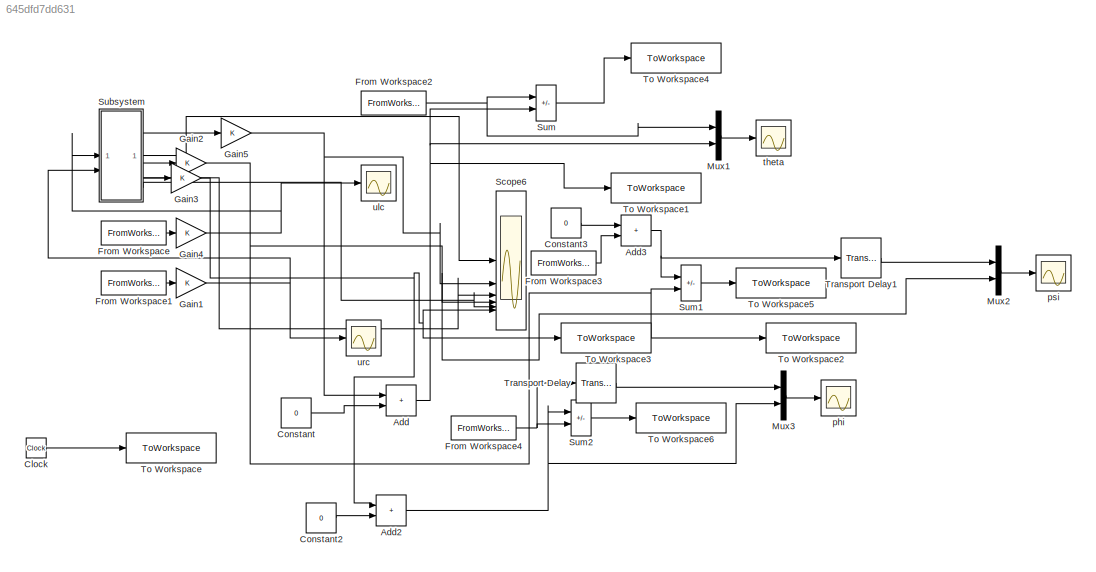
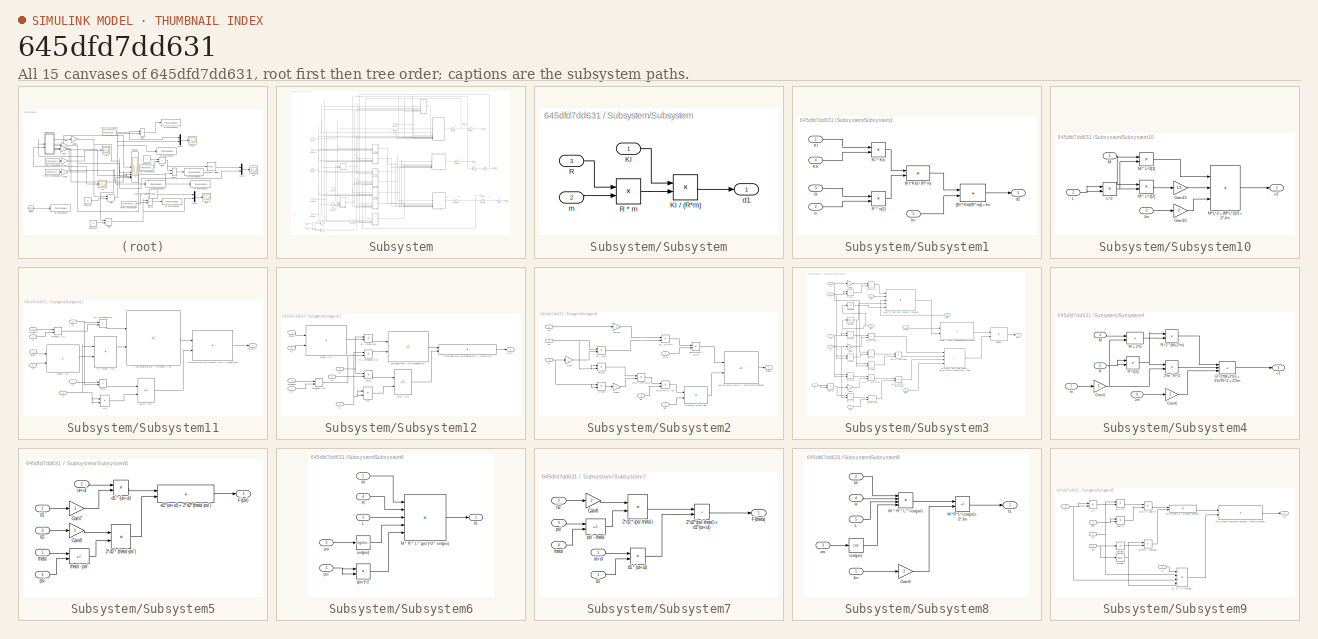
[diagram: thumbnail index - all 15 canvases of the model, root first then tree order]
MODEL slx_645dfd7dd631
KIND model
CONFIG AbsTol = auto
CONFIG EnableMultiTasking = off
CONFIG FixedStep = auto
CONFIG MaxStep = auto
CONFIG MinStep = auto
CONFIG RelTol = 1e-3
CONFIG SampleTimeConstraint = Unconstrained
CONFIG SolverName = VariableStepAuto
CONFIG StartTime = 0.0
CONFIG StopTime = 60
BLOCK [Sum] Add
  IconShape = rectangular
BLOCK [Sum] Add2
  IconShape = rectangular
BLOCK [Sum] Add3
  IconShape = rectangular
BLOCK [Clock] Clock
BLOCK [Constant] Constant
  Value = 0
BLOCK [Constant] Constant2
  Value = 0
BLOCK [Constant] Constant3
  Value = 0
BLOCK [FromWorkspace] From Workspace
  SampleTime = Ts
  VariableName = [t_exp urc]
BLOCK [FromWorkspace] From Workspace1
  SampleTime = Ts
  VariableName = [t_exp ulc]
BLOCK [FromWorkspace] From Workspace2
  SampleTime = Ts
  VariableName = [t_exp theta]
BLOCK [FromWorkspace] From Workspace3
  SampleTime = Ts
  VariableName = [t_exp psi]
BLOCK [FromWorkspace] From Workspace4
  SampleTime = Ts
  VariableName = [t_exp phi]
BLOCK [Gain] Gain1
BLOCK [Gain] Gain2
BLOCK [Gain] Gain3
BLOCK [Gain] Gain4
BLOCK [Gain] Gain5
BLOCK [Mux] Mux1
  DisplayOption = bar
  Inputs = 2
BLOCK [Mux] Mux2
  DisplayOption = bar
  Inputs = 2
BLOCK [Mux] Mux3
  DisplayOption = bar
  Inputs = 2
BLOCK [Scope] Scope6
  Floating = off
  NumInputPorts = 6
  ScopeSpecificationString = Simulink.scopes.TimeScopeBlockCfg('CurrentConfiguration', extmgr.ConfigurationSet(extmgr.Configuration('Core','General UI',true),extmgr.Configuration('Core','Source UI',true),extmgr.Configuration('Sources','WiredSimulink',true,'DataLoggingVariableName','ScopeData4'),extmgr.Configuration('Visuals','Time Domain',true,'SerializedDisplays',{struct('MinYLimReal','-14.69797','MaxYLimReal','20.64372','YL...<+1449ch>
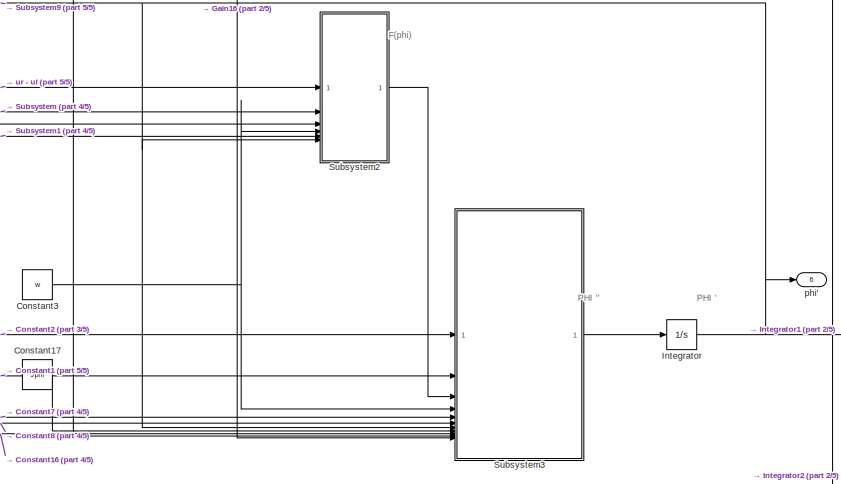
[diagram: Subsystem - part 1/5, top center region]
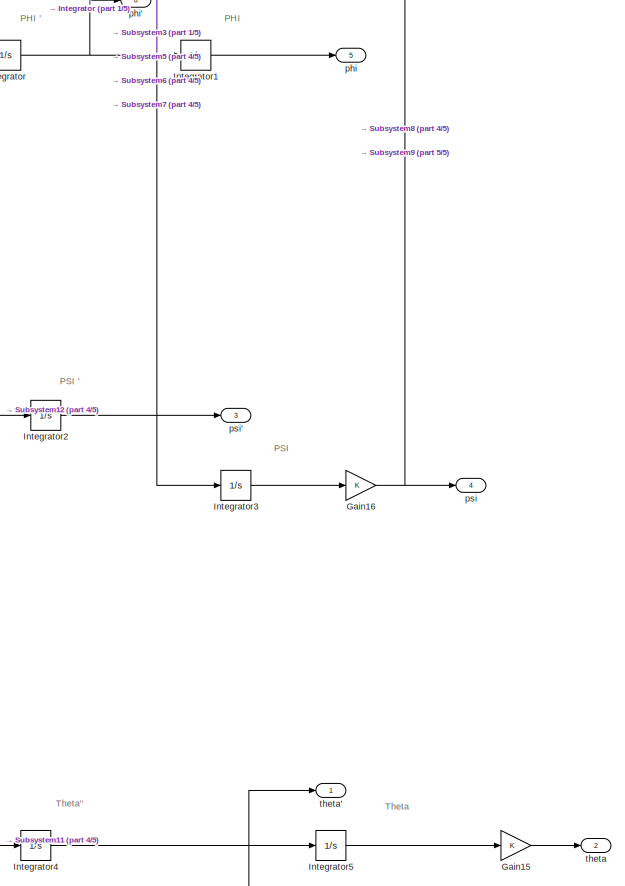
[diagram: Subsystem - part 2/5, middle right region]
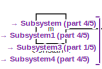
[diagram: Subsystem - part 3/5, middle left region]
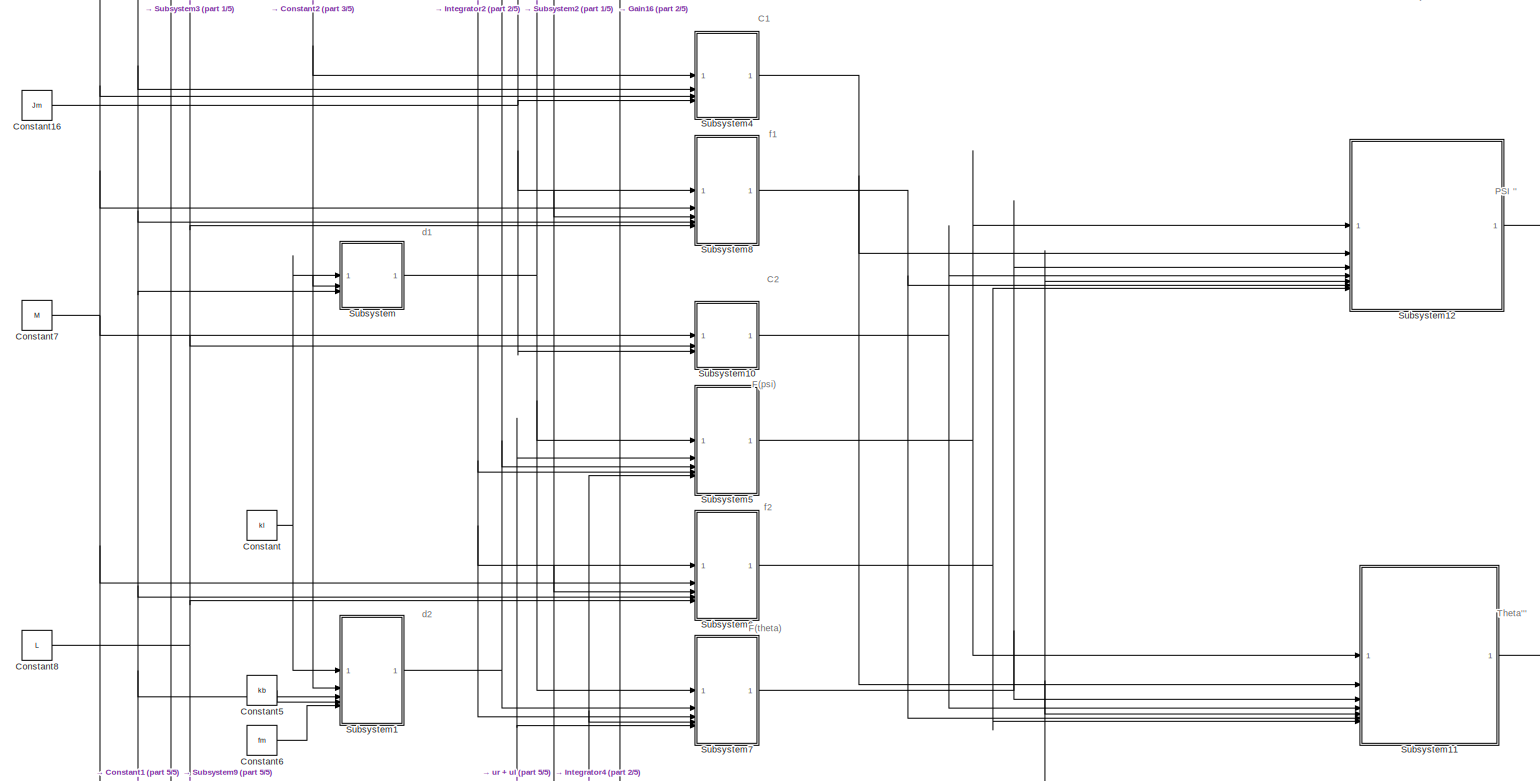
[diagram: Subsystem - part 4/5, central region]
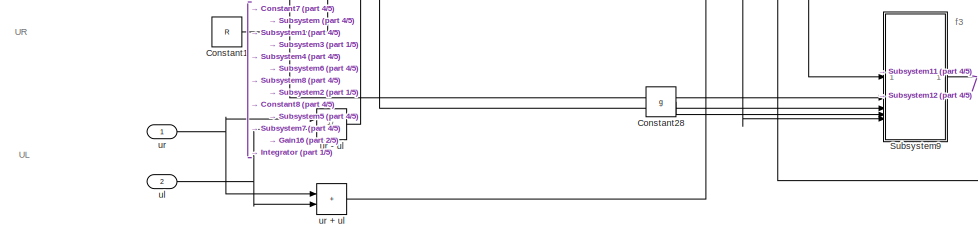
[diagram: Subsystem - part 5/5, bottom left region]
BLOCK [SubSystem] Subsystem
BLOCK [Constant] Subsystem/Constant
  Value = kl
BLOCK [Constant] Subsystem/Constant1
  Value = R
BLOCK [Constant] Subsystem/Constant16
  Value = Jm
BLOCK [Constant] Subsystem/Constant17
  Value = Jphi
BLOCK [Constant] Subsystem/Constant2
  Value = m
BLOCK [Constant] Subsystem/Constant28
  Value = g
BLOCK [Constant] Subsystem/Constant3
  Value = w
BLOCK [Constant] Subsystem/Constant5
  Value = kb
BLOCK [Constant] Subsystem/Constant6
  Value = fm
BLOCK [Constant] Subsystem/Constant7
  Value = M
BLOCK [Constant] Subsystem/Constant8
  Value = L
BLOCK [Gain] Subsystem/Gain15
BLOCK [Gain] Subsystem/Gain16
BLOCK [Integrator] Subsystem/Integrator
BLOCK [Integrator] Subsystem/Integrator1
BLOCK [Integrator] Subsystem/Integrator2
BLOCK [Integrator] Subsystem/Integrator3
BLOCK [Integrator] Subsystem/Integrator4
BLOCK [Integrator] Subsystem/Integrator5
BLOCK [SubSystem] Subsystem/Subsystem
BLOCK [Inport] Subsystem/Subsystem/Kl
BLOCK [Product] Subsystem/Subsystem/Kl // (R*m)
  Inputs = */
BLOCK [Inport] Subsystem/Subsystem/R
  Port = 3
BLOCK [Product] Subsystem/Subsystem/R * m
BLOCK [Outport] Subsystem/Subsystem/d1
BLOCK [Inport] Subsystem/Subsystem/m
  Port = 2
BLOCK [SubSystem] Subsystem/Subsystem1
BLOCK [Sum] Subsystem/Subsystem1/((Kl*Kb)//(R*m)) + fm
  IconShape = rectangular
BLOCK [Product] Subsystem/Subsystem1/(Kl*Kb) // (R*m)
  Inputs = */
BLOCK [Inport] Subsystem/Subsystem1/Kb
  Port = 4
BLOCK [Inport] Subsystem/Subsystem1/Kl
BLOCK [Product] Subsystem/Subsystem1/Kl * Kb
BLOCK [Inport] Subsystem/Subsystem1/R
  Port = 3
BLOCK [Product] Subsystem/Subsystem1/R * m[1]
BLOCK [Outport] Subsystem/Subsystem1/d2
BLOCK [Inport] Subsystem/Subsystem1/fm
  Port = 5
BLOCK [Inport] Subsystem/Subsystem1/m
  Port = 2
BLOCK [SubSystem] Subsystem/Subsystem10
BLOCK [Gain] Subsystem/Subsystem10/Gain10
  Gain = 2
BLOCK [Gain] Subsystem/Subsystem10/Gain13
  Gain = 1/3
BLOCK [Inport] Subsystem/Subsystem10/Jm
  Port = 3
BLOCK [Inport] Subsystem/Subsystem10/L
  Port = 2
BLOCK [Product] Subsystem/Subsystem10/L^2
BLOCK [Inport] Subsystem/Subsystem10/M
BLOCK [Product] Subsystem/Subsystem10/M * L^2[1]
BLOCK [Product] Subsystem/Subsystem10/M * L^2[2]
BLOCK [Sum] Subsystem/Subsystem10/M*L^2 + (M*L^2)//3 + 2*Jm
  IconShape = rectangular
  Inputs = +++
BLOCK [Outport] Subsystem/Subsystem10/c2
BLOCK [SubSystem] Subsystem/Subsystem11
BLOCK [Sum] Subsystem/Subsystem11/  c1*c2 - f1^2
  IconShape = rectangular
  Inputs = +-
BLOCK [Product] Subsystem/Subsystem11/(c2*(F(the ta)+f2)-f1*(F(psi) + f3)) // (c1*c2-f1^2) 
  Inputs = */
BLOCK [Inport] Subsystem/Subsystem11/F(psi)
BLOCK [Sum] Subsystem/Subsystem11/F(psi) + f3
  IconShape = rectangular
BLOCK [Inport] Subsystem/Subsystem11/F(theta)
  Port = 3
BLOCK [Sum] Subsystem/Subsystem11/F(theta) + f2
  IconShape = rectangular
BLOCK [Outport] Subsystem/Subsystem11/THETA"
BLOCK [Inport] Subsystem/Subsystem11/c1
  Port = 2
BLOCK [Product] Subsystem/Subsystem11/c1*c2
BLOCK [Inport] Subsystem/Subsystem11/c2
  Port = 4
BLOCK [Product] Subsystem/Subsystem11/c2 * (F(theta)+f2)
BLOCK [Sum] Subsystem/Subsystem11/c2*(F(the ta)+f2) - f1*(F(psi) + f3)
  IconShape = rectangular
  Inputs = +-
BLOCK [Inport] Subsystem/Subsystem11/f1
  Port = 6
BLOCK [Product] Subsystem/Subsystem11/f1 * (F(psi) + f3)
BLOCK [Product] Subsystem/Subsystem11/f1^2
BLOCK [Inport] Subsystem/Subsystem11/f2
  Port = 7
BLOCK [Inport] Subsystem/Subsystem11/f3
  Port = 5
BLOCK [SubSystem] Subsystem/Subsystem12
BLOCK [Sum] Subsystem/Subsystem12/ c1*c2 - f1^2
  IconShape = rectangular
  Inputs = +-
BLOCK [Product] Subsystem/Subsystem12/(c1*(F(psi)+f3)-f1*(F(theta)+f2)) // (c1*c2-f1^2)
  Inputs = */
BLOCK [Inport] Subsystem/Subsystem12/F(psi)
BLOCK [Sum] Subsystem/Subsystem12/F(psi) + f3
  IconShape = rectangular
BLOCK [Inport] Subsystem/Subsystem12/F(theta)
  Port = 3
BLOCK [Sum] Subsystem/Subsystem12/F(theta) + f2
  IconShape = rectangular
BLOCK [Outport] Subsystem/Subsystem12/PSI"
BLOCK [Inport] Subsystem/Subsystem12/c1
  Port = 2
BLOCK [Product] Subsystem/Subsystem12/c1 * (F(psi)+f3)
BLOCK [Sum] Subsystem/Subsystem12/c1*(F(psi)+f3) - f1* (F(theta)+f2 )
  IconShape = rectangular
  Inputs = +-
BLOCK [Product] Subsystem/Subsystem12/c1*c2
BLOCK [Inport] Subsystem/Subsystem12/c2
  Port = 4
BLOCK [Inport] Subsystem/Subsystem12/f1
  Port = 6
BLOCK [Product] Subsystem/Subsystem12/f1 * (F(theta)+ f2)
BLOCK [Product] Subsystem/Subsystem12/f1^2
BLOCK [Inport] Subsystem/Subsystem12/f2
  Port = 7
BLOCK [Inport] Subsystem/Subsystem12/f3
  Port = 5
BLOCK [SubSystem] Subsystem/Subsystem2
BLOCK [Product] Subsystem/Subsystem2/-d1 * W//(2*R)
BLOCK [Sum] Subsystem/Subsystem2/-d1*(W//(2*R))*(ur-ul) - W^2//(2*R^2)*d2*phi'
  IconShape = rectangular
  Inputs = +-
BLOCK [Product] Subsystem/Subsystem2/-d1*W//(2*R) * (ur-ul)
BLOCK [Outport] Subsystem/Subsystem2/F(phi)
BLOCK [Gain] Subsystem/Subsystem2/Gain
  Gain = 2
BLOCK [Gain] Subsystem/Subsystem2/Gain1
  Gain = 2
BLOCK [Gain] Subsystem/Subsystem2/Gain17
  Gain = -1
BLOCK [Inport] Subsystem/Subsystem2/R
  Port = 3
BLOCK [Product] Subsystem/Subsystem2/R^2[1]
BLOCK [Inport] Subsystem/Subsystem2/W
  Port = 4
BLOCK [Product] Subsystem/Subsystem2/W // (2*R)
  Inputs = */
BLOCK [Product] Subsystem/Subsystem2/W^2 // (2*R^2)[1]
  Inputs = */
BLOCK [Product] Subsystem/Subsystem2/W^2//(2*R^2) * d2
BLOCK [Product] Subsystem/Subsystem2/W^2//(2*R^2)*d2 * phi'
BLOCK [Product] Subsystem/Subsystem2/W^2[1]
BLOCK [Inport] Subsystem/Subsystem2/d1
  Port = 2
BLOCK [Inport] Subsystem/Subsystem2/d2
  Port = 5
BLOCK [Inport] Subsystem/Subsystem2/phi'
  Port = 6
BLOCK [Inport] Subsystem/Subsystem2/ur-ul
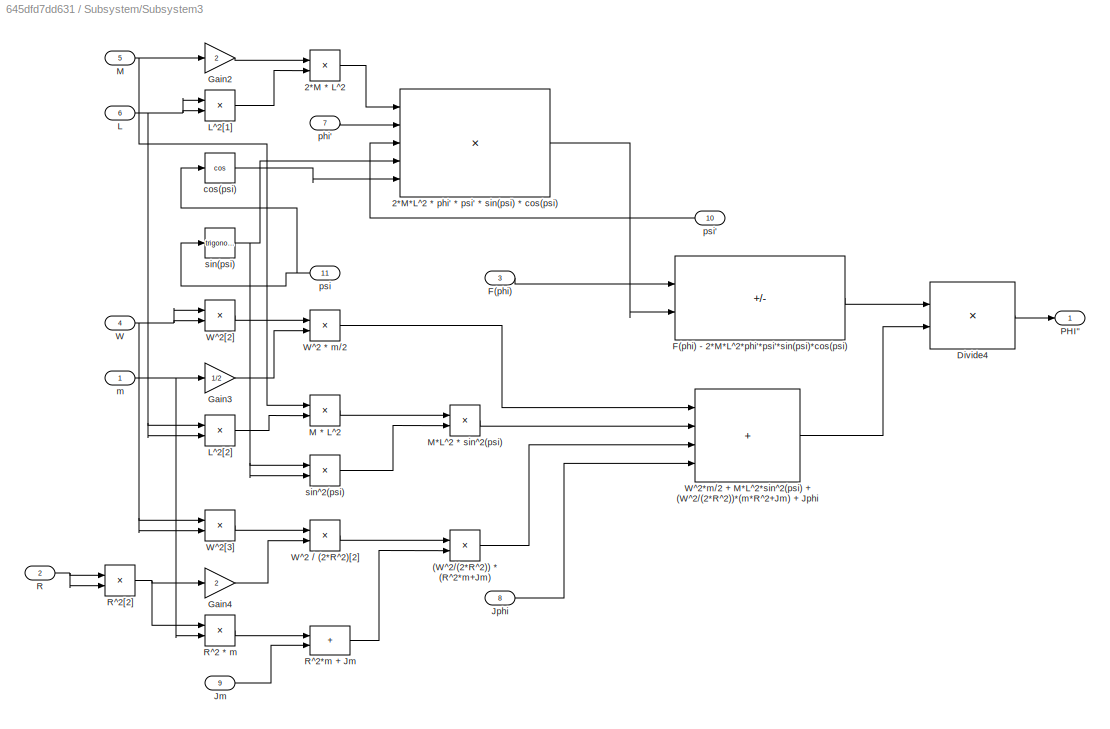
BLOCK [SubSystem] Subsystem/Subsystem3
BLOCK [Product] Subsystem/Subsystem3/(W^2//(2*R^2)) * (R^2*m+Jm)
BLOCK [Product] Subsystem/Subsystem3/2*M * L^2
BLOCK [Product] Subsystem/Subsystem3/2*M*L^2 * phi' * psi' * sin(psi) * cos(psi)
  Inputs = 5
BLOCK [Product] Subsystem/Subsystem3/Divide4
  Inputs = */
BLOCK [Inport] Subsystem/Subsystem3/F(phi)
  Port = 3
BLOCK [Sum] Subsystem/Subsystem3/F(phi) - 2*M*L^2*phi'*psi'*sin(psi)*cos(psi)
  IconShape = rectangular
  Inputs = +-
BLOCK [Gain] Subsystem/Subsystem3/Gain2
  Gain = 2
BLOCK [Gain] Subsystem/Subsystem3/Gain3
  Gain = 1/2
BLOCK [Gain] Subsystem/Subsystem3/Gain4
  Gain = 2
BLOCK [Inport] Subsystem/Subsystem3/Jm
  Port = 9
BLOCK [Inport] Subsystem/Subsystem3/Jphi 
  Port = 8
BLOCK [Inport] Subsystem/Subsystem3/L
  Port = 6
BLOCK [Product] Subsystem/Subsystem3/L^2[1]
BLOCK [Product] Subsystem/Subsystem3/L^2[2]
BLOCK [Inport] Subsystem/Subsystem3/M
  Port = 5
BLOCK [Product] Subsystem/Subsystem3/M * L^2
BLOCK [Product] Subsystem/Subsystem3/M*L^2 * sin^2(psi)
BLOCK [Outport] Subsystem/Subsystem3/PHI"
BLOCK [Inport] Subsystem/Subsystem3/R
  Port = 2
BLOCK [Product] Subsystem/Subsystem3/R^2 * m
BLOCK [Sum] Subsystem/Subsystem3/R^2*m + Jm
  IconShape = rectangular
BLOCK [Product] Subsystem/Subsystem3/R^2[2]
BLOCK [Inport] Subsystem/Subsystem3/W
  Port = 4
BLOCK [Product] Subsystem/Subsystem3/W^2 * m//2
BLOCK [Product] Subsystem/Subsystem3/W^2 // (2*R^2)[2]
  Inputs = */
BLOCK [Sum] Subsystem/Subsystem3/W^2*m//2 + M*L^2*sin^2(psi) + (W^2//(2*R^2))*(m*R^2+Jm) + Jphi
  IconShape = rectangular
  Inputs = ++++
BLOCK [Product] Subsystem/Subsystem3/W^2[2]
BLOCK [Product] Subsystem/Subsystem3/W^2[3]
BLOCK [Trigonometry] Subsystem/Subsystem3/cos(psi)
  Operator = cos
BLOCK [Inport] Subsystem/Subsystem3/m
BLOCK [Inport] Subsystem/Subsystem3/phi'
  Port = 7
BLOCK [Inport] Subsystem/Subsystem3/psi
  Port = 11
BLOCK [Inport] Subsystem/Subsystem3/psi'
  Port = 10
BLOCK [Trigonometry] Subsystem/Subsystem3/sin(psi)
BLOCK [Product] Subsystem/Subsystem3/sin^2(psi)
BLOCK [SubSystem] Subsystem/Subsystem4
BLOCK [Product] Subsystem/Subsystem4/2*m * R^2
BLOCK [Gain] Subsystem/Subsystem4/Gain5
  Gain = 2
BLOCK [Gain] Subsystem/Subsystem4/Gain6
  Gain = 2
BLOCK [Inport] Subsystem/Subsystem4/Jm
  Port = 4
BLOCK [Inport] Subsystem/Subsystem4/M
  Port = 3
BLOCK [Sum] Subsystem/Subsystem4/M + 2*m
  IconShape = rectangular
BLOCK [Inport] Subsystem/Subsystem4/R
  Port = 2
BLOCK [Product] Subsystem/Subsystem4/R^2 * (M+2*m)
BLOCK [Sum] Subsystem/Subsystem4/R^2*(M+2*m) + 2*m*R^2 + 2*Jm
  IconShape = rectangular
  Inputs = +++
BLOCK [Product] Subsystem/Subsystem4/R^2[3]
BLOCK [Outport] Subsystem/Subsystem4/c1
BLOCK [Inport] Subsystem/Subsystem4/m
BLOCK [SubSystem] Subsystem/Subsystem5
BLOCK [Product] Subsystem/Subsystem5/-d1 * (ur+ul)
BLOCK [Sum] Subsystem/Subsystem5/-d1*(ur+ul) + 2*d2*(theta'-psi')
  IconShape = rectangular
BLOCK [Product] Subsystem/Subsystem5/2*d2 * (theta'-psi')
BLOCK [Outport] Subsystem/Subsystem5/F(psi)
BLOCK [Gain] Subsystem/Subsystem5/Gain7
  Gain = -1
BLOCK [Gain] Subsystem/Subsystem5/Gain8
  Gain = 2
BLOCK [Inport] Subsystem/Subsystem5/d1
BLOCK [Inport] Subsystem/Subsystem5/d2
  Port = 3
BLOCK [Inport] Subsystem/Subsystem5/psi'
  Port = 4
BLOCK [Inport] Subsystem/Subsystem5/theta'
  Port = 5
BLOCK [Sum] Subsystem/Subsystem5/theta' - psi'
  IconShape = rectangular
  Inputs = +-
BLOCK [Inport] Subsystem/Subsystem5/ur+ul
  Port = 2
BLOCK [SubSystem] Subsystem/Subsystem6
BLOCK [Product] Subsystem/Subsystem6/(psi')^2
BLOCK [Inport] Subsystem/Subsystem6/L
  Port = 5
BLOCK [Inport] Subsystem/Subsystem6/M
  Port = 2
BLOCK [Product] Subsystem/Subsystem6/M * R * L * (psi')^2 * sin(psi)
  Inputs = 5
BLOCK [Inport] Subsystem/Subsystem6/R
  Port = 4
BLOCK [Outport] Subsystem/Subsystem6/f2
BLOCK [Inport] Subsystem/Subsystem6/psi
  Port = 3
BLOCK [Inport] Subsystem/Subsystem6/psi'
BLOCK [Trigonometry] Subsystem/Subsystem6/sin(psi)
BLOCK [SubSystem] Subsystem/Subsystem7
BLOCK [Product] Subsystem/Subsystem7/2*d2 * (psi'-theta')
BLOCK [Sum] Subsystem/Subsystem7/2*d2*(psi'-theta') + d1*(ur+ul) 
  IconShape = rectangular
BLOCK [Outport] Subsystem/Subsystem7/F(theta)
BLOCK [Gain] Subsystem/Subsystem7/Gain8
  Gain = 2
BLOCK [Inport] Subsystem/Subsystem7/d1
BLOCK [Product] Subsystem/Subsystem7/d1  * (ur+ul) 
BLOCK [Inport] Subsystem/Subsystem7/d2
  Port = 2
BLOCK [Inport] Subsystem/Subsystem7/psi'
  Port = 3
BLOCK [Sum] Subsystem/Subsystem7/psi' - theta'
  IconShape = rectangular
  Inputs = +-
BLOCK [Inport] Subsystem/Subsystem7/theta'
  Port = 4
BLOCK [Inport] Subsystem/Subsystem7/ur+ul
  Port = 5
BLOCK [SubSystem] Subsystem/Subsystem8
BLOCK [Gain] Subsystem/Subsystem8/Gain9
  Gain = 2
BLOCK [Inport] Subsystem/Subsystem8/Jm
BLOCK [Inport] Subsystem/Subsystem8/L
  Port = 5
BLOCK [Inport] Subsystem/Subsystem8/M
  Port = 2
BLOCK [Product] Subsystem/Subsystem8/M * R * L * cos(psi) 
  Inputs = 4
BLOCK [Sum] Subsystem/Subsystem8/M*R*L*cos(psi) - 2*Jm 
  IconShape = rectangular
  Inputs = +-
BLOCK [Inport] Subsystem/Subsystem8/R 
  Port = 4
BLOCK [Trigonometry] Subsystem/Subsystem8/cos(psi)
  Operator = cos
BLOCK [Outport] Subsystem/Subsystem8/f1
BLOCK [Inport] Subsystem/Subsystem8/psi
  Port = 3
BLOCK [SubSystem] Subsystem/Subsystem9
BLOCK [Product] Subsystem/Subsystem9/(phi')^2
BLOCK [Inport] Subsystem/Subsystem9/L 
  Port = 3
BLOCK [Product] Subsystem/Subsystem9/L^2
BLOCK [Inport] Subsystem/Subsystem9/M
  Port = 2
BLOCK [Product] Subsystem/Subsystem9/M * L^2
BLOCK [Product] Subsystem/Subsystem9/M*L^2 * (phi')^2
BLOCK [Product] Subsystem/Subsystem9/M*L^2*(phi')^2 * sin(psi)*cos(psi)
BLOCK [Sum] Subsystem/Subsystem9/M*L^2*(phi')^2*sin(psi)*cos(psi) + g*M*L*sin(psi)
  IconShape = rectangular
BLOCK [Trigonometry] Subsystem/Subsystem9/cos(psi)
  Operator = cos
BLOCK [Outport] Subsystem/Subsystem9/f3
BLOCK [Inport] Subsystem/Subsystem9/g
  Port = 4
BLOCK [Product] Subsystem/Subsystem9/g * M * L * sin(psi)
  Inputs = 4
BLOCK [Inport] Subsystem/Subsystem9/phi'
BLOCK [Inport] Subsystem/Subsystem9/psi
  Port = 5
BLOCK [Trigonometry] Subsystem/Subsystem9/sin(psi)
BLOCK [Product] Subsystem/Subsystem9/sin(psi) * cos(psi)
BLOCK [Outport] Subsystem/phi
  Port = 5
  VectorParamsAs1DForOutWhenUnconnected = off
BLOCK [Outport] Subsystem/phi'
  Port = 6
  VectorParamsAs1DForOutWhenUnconnected = off
BLOCK [Outport] Subsystem/psi
  Port = 4
  VectorParamsAs1DForOutWhenUnconnected = off
BLOCK [Outport] Subsystem/psi'
  Port = 3
  VectorParamsAs1DForOutWhenUnconnected = off
BLOCK [Outport] Subsystem/theta
  Port = 2
  VectorParamsAs1DForOutWhenUnconnected = off
BLOCK [Outport] Subsystem/theta'
  VectorParamsAs1DForOutWhenUnconnected = off
BLOCK [Inport] Subsystem/ul
  Port = 2
BLOCK [Inport] Subsystem/ur
BLOCK [Sum] Subsystem/ur + ul 
  IconShape = rectangular
BLOCK [Sum] Subsystem/ur - ul
  IconShape = rectangular
  Inputs = +-
BLOCK [Sum] Sum
  IconShape = rectangular
  Inputs = |+-
BLOCK [Sum] Sum1
  IconShape = rectangular
  Inputs = |+-
BLOCK [Sum] Sum2
  IconShape = rectangular
  Inputs = -+
BLOCK [ToWorkspace] To Workspace
  FixptAsFi = on
  MaxDataPoints = inf
  SampleTime = Ts
  VariableName = t
BLOCK [ToWorkspace] To Workspace1
  FixptAsFi = on
  MaxDataPoints = inf
  SampleTime = Ts
  VariableName = theta_sim
BLOCK [ToWorkspace] To Workspace2
  FixptAsFi = on
  MaxDataPoints = inf
  SampleTime = Ts
  VariableName = psi_sim
BLOCK [ToWorkspace] To Workspace3
  FixptAsFi = on
  MaxDataPoints = inf
  SampleTime = Ts
  VariableName = phi_sim
BLOCK [ToWorkspace] To Workspace4
  FixptAsFi = on
  MaxDataPoints = inf
  SampleTime = Ts
  VariableName = e_theta_sim
BLOCK [ToWorkspace] To Workspace5
  FixptAsFi = on
  MaxDataPoints = inf
  SampleTime = Ts
  VariableName = e_psi_sim
BLOCK [ToWorkspace] To Workspace6
  FixptAsFi = on
  MaxDataPoints = inf
  SampleTime = Ts
  VariableName = e_phi_sim
BLOCK [TransportDelay] Transport Delay
  DelayTime = 2.6
BLOCK [TransportDelay] Transport Delay1
  DelayTime = 1.2
BLOCK [Scope] phi
  Floating = off
  NumInputPorts = 1
  ScopeSpecificationString = Simulink.scopes.TimeScopeBlockCfg('CurrentConfiguration', extmgr.ConfigurationSet(extmgr.Configuration('Core','General UI',true),extmgr.Configuration('Core','Source UI',true),extmgr.Configuration('Sources','WiredSimulink',true,'DataLoggingVariableName','ScopeData3','SampleTime','Ts'),extmgr.Configuration('Visuals','Time Domain',true,'SerializedDisplays',{struct('MinYLimReal','-0.01823','MaxYLimRea...<+1439ch>
BLOCK [Scope] psi
  Floating = off
  NumInputPorts = 1
  ScopeSpecificationString = Simulink.scopes.TimeScopeBlockCfg('CurrentConfiguration', extmgr.ConfigurationSet(extmgr.Configuration('Core','General UI',true),extmgr.Configuration('Core','Source UI',true),extmgr.Configuration('Sources','WiredSimulink',true,'DataLoggingVariableName','ScopeData2','SampleTime','Ts'),extmgr.Configuration('Visuals','Time Domain',true,'SerializedDisplays',{struct('MinYLimReal','-0.63752','MaxYLimRea...<+1448ch>
BLOCK [Scope] theta
  Floating = off
  NumInputPorts = 1
  ScopeSpecificationString = Simulink.scopes.TimeScopeBlockCfg('CurrentConfiguration', extmgr.ConfigurationSet(extmgr.Configuration('Core','General UI',true),extmgr.Configuration('Core','Source UI',true),extmgr.Configuration('Sources','WiredSimulink',true,'DataLoggingVariableName','ScopeData1','SampleTime','Ts'),extmgr.Configuration('Visuals','Time Domain',true,'SerializedDisplays',{struct('MinYLimReal','-2.68301','MaxYLimRea...<+1449ch>
BLOCK [Scope] ulc
  Floating = off
  NumInputPorts = 1
  ScopeSpecificationString = Simulink.scopes.TimeScopeBlockCfg('CurrentConfiguration', extmgr.ConfigurationSet(extmgr.Configuration('Core','General UI',true),extmgr.Configuration('Core','Source UI',true),extmgr.Configuration('Sources','WiredSimulink',true,'DataLoggingVariableName','ScopeData4','SampleTime','Ts'),extmgr.Configuration('Visuals','Time Domain',true,'SerializedDisplays',{struct('MinYLimReal','4.56074','MaxYLimReal...<+1458ch>
BLOCK [Scope] urc
  Floating = off
  NumInputPorts = 1
  ScopeSpecificationString = Simulink.scopes.TimeScopeBlockCfg('CurrentConfiguration', extmgr.ConfigurationSet(extmgr.Configuration('Core','General UI',true),extmgr.Configuration('Core','Source UI',true),extmgr.Configuration('Sources','WiredSimulink',true,'DataLoggingVariableName','ScopeData5','SampleTime','Ts'),extmgr.Configuration('Visuals','Time Domain',true,'SerializedDisplays',{struct('MinYLimReal','4.56074','MaxYLimReal...<+1475ch>
ANNOTATION Subsystem: PHI '
ANNOTATION Subsystem: PHI ' '
ANNOTATION Subsystem: PHI
ANNOTATION Subsystem: PSI ''
ANNOTATION Subsystem: PSI '
ANNOTATION Subsystem: PSI
ANNOTATION Subsystem: Theta'' '
ANNOTATION Subsystem: Theta' '
ANNOTATION Subsystem: Theta
ANNOTATION Subsystem: C1
ANNOTATION Subsystem: C2
ANNOTATION Subsystem: F(psi)
ANNOTATION Subsystem: UL
ANNOTATION Subsystem: UR
ANNOTATION Subsystem: d1
ANNOTATION Subsystem: d2
ANNOTATION Subsystem: f1
ANNOTATION Subsystem: F(phi)
ANNOTATION Subsystem: F(theta)
ANNOTATION Subsystem: f2
ANNOTATION Subsystem: f3
NET Add2:1 -> Mux3:2, Sum2:1
NET Add3:1 -> Sum1:1, Transport Delay1:1
NET Add:1 -> Mux1:2, Sum:2, To Workspace1:1
LINE Clock:1 -> To Workspace:1
LINE Constant2:1 -> Add2:2
LINE Constant3:1 -> Add3:1
LINE Constant:1 -> Add:2
LINE From Workspace1:1 -> Gain1:1
NET From Workspace2:1 -> Mux1:1, Sum:1
LINE From Workspace3:1 -> Add3:2
NET From Workspace4:1 -> Sum2:2, Transport Delay:1
LINE From Workspace:1 -> Gain4:1
NET Gain1:1 -> Subsystem:2, urc:1
NET Gain2:1 -> Mux2:2, Scope6:4, Sum1:2, To Workspace2:1
NET Gain3:1 -> Add2:1, Scope6:6, To Workspace3:1
NET Gain4:1 -> Subsystem:1, ulc:1
NET Gain5:1 -> Add:1, Scope6:2
LINE Mux1:1 -> theta:1
LINE Mux2:1 -> psi:1
LINE Mux3:1 -> phi:1
NET Subsystem/Constant16:1 -> Subsystem/Subsystem10:3, Subsystem/Subsystem3:9, Subsystem/Subsystem4:4, Subsystem/Subsystem8:1
LINE Subsystem/Constant17:1 -> Subsystem/Subsystem3:8
NET Subsystem/Constant1:1 -> Subsystem/Subsystem1:3, Subsystem/Subsystem2:3, Subsystem/Subsystem3:2, Subsystem/Subsystem4:2, Subsystem/Subsystem6:4, Subsystem/Subsystem8:4, Subsystem/Subsystem:3
LINE Subsystem/Constant28:1 -> Subsystem/Subsystem9:4
NET Subsystem/Constant2:1 -> Subsystem/Subsystem1:2, Subsystem/Subsystem3:1, Subsystem/Subsystem4:1, Subsystem/Subsystem:2
NET Subsystem/Constant3:1 -> Subsystem/Subsystem2:4, Subsystem/Subsystem3:4
LINE Subsystem/Constant5:1 -> Subsystem/Subsystem1:4
LINE Subsystem/Constant6:1 -> Subsystem/Subsystem1:5
NET Subsystem/Constant7:1 -> Subsystem/Subsystem10:1, Subsystem/Subsystem3:5, Subsystem/Subsystem4:3, Subsystem/Subsystem6:2, Subsystem/Subsystem8:2, Subsystem/Subsystem9:2
NET Subsystem/Constant8:1 -> Subsystem/Subsystem10:2, Subsystem/Subsystem3:6, Subsystem/Subsystem6:5, Subsystem/Subsystem8:5, Subsystem/Subsystem9:3
NET Subsystem/Constant:1 -> Subsystem/Subsystem1:1, Subsystem/Subsystem:1
LINE Subsystem/Gain15:1 -> Subsystem/theta:1
NET Subsystem/Gain16:1 -> Subsystem/Subsystem3:11, Subsystem/Subsystem6:3, Subsystem/Subsystem8:3, Subsystem/Subsystem9:5, Subsystem/psi:1
LINE Subsystem/Integrator1:1 -> Subsystem/phi:1
NET Subsystem/Integrator2:1 -> Subsystem/Integrator3:1, Subsystem/Subsystem3:10, Subsystem/Subsystem5:4, Subsystem/Subsystem6:1, Subsystem/Subsystem7:3, Subsystem/psi':1
LINE Subsystem/Integrator3:1 -> Subsystem/Gain16:1
NET Subsystem/Integrator4:1 -> Subsystem/Integrator5:1, Subsystem/Subsystem5:5, Subsystem/Subsystem7:4, Subsystem/theta':1
LINE Subsystem/Integrator5:1 -> Subsystem/Gain15:1
NET Subsystem/Integrator:1 -> Subsystem/Integrator1:1, Subsystem/Subsystem2:6, Subsystem/Subsystem3:7, Subsystem/Subsystem9:1, Subsystem/phi':1
LINE Subsystem/Subsystem/Kl // (R*m):1 -> Subsystem/Subsystem/d1:1
LINE Subsystem/Subsystem/Kl:1 -> Subsystem/Subsystem/Kl // (R*m):1
LINE Subsystem/Subsystem/R * m:1 -> Subsystem/Subsystem/Kl // (R*m):2
LINE Subsystem/Subsystem/R:1 -> Subsystem/Subsystem/R * m:1
LINE Subsystem/Subsystem/m:1 -> Subsystem/Subsystem/R * m:2
LINE Subsystem/Subsystem1/((Kl*Kb)//(R*m)) + fm:1 -> Subsystem/Subsystem1/d2:1
LINE Subsystem/Subsystem1/(Kl*Kb) // (R*m):1 -> Subsystem/Subsystem1/((Kl*Kb)//(R*m)) + fm:1
LINE Subsystem/Subsystem1/Kb:1 -> Subsystem/Subsystem1/Kl * Kb:2
LINE Subsystem/Subsystem1/Kl * Kb:1 -> Subsystem/Subsystem1/(Kl*Kb) // (R*m):1
LINE Subsystem/Subsystem1/Kl:1 -> Subsystem/Subsystem1/Kl * Kb:1
LINE Subsystem/Subsystem1/R * m[1]:1 -> Subsystem/Subsystem1/(Kl*Kb) // (R*m):2
LINE Subsystem/Subsystem1/R:1 -> Subsystem/Subsystem1/R * m[1]:1
LINE Subsystem/Subsystem1/fm:1 -> Subsystem/Subsystem1/((Kl*Kb)//(R*m)) + fm:2
LINE Subsystem/Subsystem1/m:1 -> Subsystem/Subsystem1/R * m[1]:2
LINE Subsystem/Subsystem10/Gain10:1 -> Subsystem/Subsystem10/M*L^2 + (M*L^2)//3 + 2*Jm:3
LINE Subsystem/Subsystem10/Gain13:1 -> Subsystem/Subsystem10/M*L^2 + (M*L^2)//3 + 2*Jm:2
LINE Subsystem/Subsystem10/Jm:1 -> Subsystem/Subsystem10/Gain10:1
NET Subsystem/Subsystem10/L:1 -> Subsystem/Subsystem10/L^2:1, Subsystem/Subsystem10/L^2:2
NET Subsystem/Subsystem10/L^2:1 -> Subsystem/Subsystem10/M * L^2[1]:2, Subsystem/Subsystem10/M * L^2[2]:2
LINE Subsystem/Subsystem10/M * L^2[1]:1 -> Subsystem/Subsystem10/M*L^2 + (M*L^2)//3 + 2*Jm:1
LINE Subsystem/Subsystem10/M * L^2[2]:1 -> Subsystem/Subsystem10/Gain13:1
LINE Subsystem/Subsystem10/M*L^2 + (M*L^2)//3 + 2*Jm:1 -> Subsystem/Subsystem10/c2:1
NET Subsystem/Subsystem10/M:1 -> Subsystem/Subsystem10/M * L^2[1]:1, Subsystem/Subsystem10/M * L^2[2]:1
NET Subsystem/Subsystem10:1 -> Subsystem/Subsystem11:4, Subsystem/Subsystem12:4
LINE Subsystem/Subsystem11/  c1*c2 - f1^2:1 -> Subsystem/Subsystem11/(c2*(F(the ta)+f2)-f1*(F(psi) + f3)) // (c1*c2-f1^2) :2
LINE Subsystem/Subsystem11/(c2*(F(the ta)+f2)-f1*(F(psi) + f3)) // (c1*c2-f1^2) :1 -> Subsystem/Subsystem11/THETA":1
LINE Subsystem/Subsystem11/F(psi) + f3:1 -> Subsystem/Subsystem11/f1 * (F(psi) + f3):2
LINE Subsystem/Subsystem11/F(psi):1 -> Subsystem/Subsystem11/F(psi) + f3:1
LINE Subsystem/Subsystem11/F(theta) + f2:1 -> Subsystem/Subsystem11/c2 * (F(theta)+f2):2
LINE Subsystem/Subsystem11/F(theta):1 -> Subsystem/Subsystem11/F(theta) + f2:1
LINE Subsystem/Subsystem11/c1*c2:1 -> Subsystem/Subsystem11/  c1*c2 - f1^2:1
LINE Subsystem/Subsystem11/c1:1 -> Subsystem/Subsystem11/c1*c2:1
LINE Subsystem/Subsystem11/c2 * (F(theta)+f2):1 -> Subsystem/Subsystem11/c2*(F(the ta)+f2) - f1*(F(psi) + f3):1
LINE Subsystem/Subsystem11/c2*(F(the ta)+f2) - f1*(F(psi) + f3):1 -> Subsystem/Subsystem11/(c2*(F(the ta)+f2)-f1*(F(psi) + f3)) // (c1*c2-f1^2) :1
NET Subsystem/Subsystem11/c2:1 -> Subsystem/Subsystem11/c1*c2:2, Subsystem/Subsystem11/c2 * (F(theta)+f2):1
LINE Subsystem/Subsystem11/f1 * (F(psi) + f3):1 -> Subsystem/Subsystem11/c2*(F(the ta)+f2) - f1*(F(psi) + f3):2
NET Subsystem/Subsystem11/f1:1 -> Subsystem/Subsystem11/f1 * (F(psi) + f3):1, Subsystem/Subsystem11/f1^2:1, Subsystem/Subsystem11/f1^2:2
LINE Subsystem/Subsystem11/f1^2:1 -> Subsystem/Subsystem11/  c1*c2 - f1^2:2
LINE Subsystem/Subsystem11/f2:1 -> Subsystem/Subsystem11/F(theta) + f2:2
LINE Subsystem/Subsystem11/f3:1 -> Subsystem/Subsystem11/F(psi) + f3:2
LINE Subsystem/Subsystem11:1 -> Subsystem/Integrator4:1
LINE Subsystem/Subsystem12/ c1*c2 - f1^2:1 -> Subsystem/Subsystem12/(c1*(F(psi)+f3)-f1*(F(theta)+f2)) // (c1*c2-f1^2):2
LINE Subsystem/Subsystem12/(c1*(F(psi)+f3)-f1*(F(theta)+f2)) // (c1*c2-f1^2):1 -> Subsystem/Subsystem12/PSI":1
LINE Subsystem/Subsystem12/F(psi) + f3:1 -> Subsystem/Subsystem12/c1 * (F(psi)+f3):2
LINE Subsystem/Subsystem12/F(psi):1 -> Subsystem/Subsystem12/F(psi) + f3:1
LINE Subsystem/Subsystem12/F(theta) + f2:1 -> Subsystem/Subsystem12/f1 * (F(theta)+ f2):2
LINE Subsystem/Subsystem12/F(theta):1 -> Subsystem/Subsystem12/F(theta) + f2:1
LINE Subsystem/Subsystem12/c1 * (F(psi)+f3):1 -> Subsystem/Subsystem12/c1*(F(psi)+f3) - f1* (F(theta)+f2 ):1
LINE Subsystem/Subsystem12/c1*(F(psi)+f3) - f1* (F(theta)+f2 ):1 -> Subsystem/Subsystem12/(c1*(F(psi)+f3)-f1*(F(theta)+f2)) // (c1*c2-f1^2):1
LINE Subsystem/Subsystem12/c1*c2:1 -> Subsystem/Subsystem12/ c1*c2 - f1^2:1
NET Subsystem/Subsystem12/c1:1 -> Subsystem/Subsystem12/c1 * (F(psi)+f3):1, Subsystem/Subsystem12/c1*c2:1
LINE Subsystem/Subsystem12/c2:1 -> Subsystem/Subsystem12/c1*c2:2
LINE Subsystem/Subsystem12/f1 * (F(theta)+ f2):1 -> Subsystem/Subsystem12/c1*(F(psi)+f3) - f1* (F(theta)+f2 ):2
NET Subsystem/Subsystem12/f1:1 -> Subsystem/Subsystem12/f1 * (F(theta)+ f2):1, Subsystem/Subsystem12/f1^2:1, Subsystem/Subsystem12/f1^2:2
LINE Subsystem/Subsystem12/f1^2:1 -> Subsystem/Subsystem12/ c1*c2 - f1^2:2
LINE Subsystem/Subsystem12/f2:1 -> Subsystem/Subsystem12/F(theta) + f2:2
LINE Subsystem/Subsystem12/f3:1 -> Subsystem/Subsystem12/F(psi) + f3:2
LINE Subsystem/Subsystem12:1 -> Subsystem/Integrator2:1
NET Subsystem/Subsystem1:1 -> Subsystem/Subsystem2:5, Subsystem/Subsystem5:3, Subsystem/Subsystem7:2
LINE Subsystem/Subsystem2/-d1 * W//(2*R):1 -> Subsystem/Subsystem2/-d1*W//(2*R) * (ur-ul):1
LINE Subsystem/Subsystem2/-d1*(W//(2*R))*(ur-ul) - W^2//(2*R^2)*d2*phi':1 -> Subsystem/Subsystem2/F(phi):1
LINE Subsystem/Subsystem2/-d1*W//(2*R) * (ur-ul):1 -> Subsystem/Subsystem2/-d1*(W//(2*R))*(ur-ul) - W^2//(2*R^2)*d2*phi':1
LINE Subsystem/Subsystem2/Gain17:1 -> Subsystem/Subsystem2/-d1 * W//(2*R):1
LINE Subsystem/Subsystem2/Gain1:1 -> Subsystem/Subsystem2/W^2 // (2*R^2)[1]:2
LINE Subsystem/Subsystem2/Gain:1 -> Subsystem/Subsystem2/W // (2*R):2
NET Subsystem/Subsystem2/R:1 -> Subsystem/Subsystem2/Gain:1, Subsystem/Subsystem2/R^2[1]:1, Subsystem/Subsystem2/R^2[1]:2
LINE Subsystem/Subsystem2/R^2[1]:1 -> Subsystem/Subsystem2/Gain1:1
LINE Subsystem/Subsystem2/W // (2*R):1 -> Subsystem/Subsystem2/-d1 * W//(2*R):2
NET Subsystem/Subsystem2/W:1 -> Subsystem/Subsystem2/W // (2*R):1, Subsystem/Subsystem2/W^2[1]:1, Subsystem/Subsystem2/W^2[1]:2
LINE Subsystem/Subsystem2/W^2 // (2*R^2)[1]:1 -> Subsystem/Subsystem2/W^2//(2*R^2) * d2:1
LINE Subsystem/Subsystem2/W^2//(2*R^2) * d2:1 -> Subsystem/Subsystem2/W^2//(2*R^2)*d2 * phi':1
LINE Subsystem/Subsystem2/W^2//(2*R^2)*d2 * phi':1 -> Subsystem/Subsystem2/-d1*(W//(2*R))*(ur-ul) - W^2//(2*R^2)*d2*phi':2
LINE Subsystem/Subsystem2/W^2[1]:1 -> Subsystem/Subsystem2/W^2 // (2*R^2)[1]:1
LINE Subsystem/Subsystem2/d1:1 -> Subsystem/Subsystem2/Gain17:1
LINE Subsystem/Subsystem2/d2:1 -> Subsystem/Subsystem2/W^2//(2*R^2) * d2:2
LINE Subsystem/Subsystem2/phi':1 -> Subsystem/Subsystem2/W^2//(2*R^2)*d2 * phi':2
LINE Subsystem/Subsystem2/ur-ul:1 -> Subsystem/Subsystem2/-d1*W//(2*R) * (ur-ul):2
LINE Subsystem/Subsystem2:1 -> Subsystem/Subsystem3:3
LINE Subsystem/Subsystem3/(W^2//(2*R^2)) * (R^2*m+Jm):1 -> Subsystem/Subsystem3/W^2*m//2 + M*L^2*sin^2(psi) + (W^2//(2*R^2))*(m*R^2+Jm) + Jphi:3
LINE Subsystem/Subsystem3/2*M * L^2:1 -> Subsystem/Subsystem3/2*M*L^2 * phi' * psi' * sin(psi) * cos(psi):1
LINE Subsystem/Subsystem3/2*M*L^2 * phi' * psi' * sin(psi) * cos(psi):1 -> Subsystem/Subsystem3/F(phi) - 2*M*L^2*phi'*psi'*sin(psi)*cos(psi):2
LINE Subsystem/Subsystem3/Divide4:1 -> Subsystem/Subsystem3/PHI":1
LINE Subsystem/Subsystem3/F(phi) - 2*M*L^2*phi'*psi'*sin(psi)*cos(psi):1 -> Subsystem/Subsystem3/Divide4:1
LINE Subsystem/Subsystem3/F(phi):1 -> Subsystem/Subsystem3/F(phi) - 2*M*L^2*phi'*psi'*sin(psi)*cos(psi):1
LINE Subsystem/Subsystem3/Gain2:1 -> Subsystem/Subsystem3/2*M * L^2:1
LINE Subsystem/Subsystem3/Gain3:1 -> Subsystem/Subsystem3/W^2 * m//2:2
LINE Subsystem/Subsystem3/Gain4:1 -> Subsystem/Subsystem3/W^2 // (2*R^2)[2]:2
LINE Subsystem/Subsystem3/Jm:1 -> Subsystem/Subsystem3/R^2*m + Jm:2
LINE Subsystem/Subsystem3/Jphi :1 -> Subsystem/Subsystem3/W^2*m//2 + M*L^2*sin^2(psi) + (W^2//(2*R^2))*(m*R^2+Jm) + Jphi:4
NET Subsystem/Subsystem3/L:1 -> Subsystem/Subsystem3/L^2[1]:1, Subsystem/Subsystem3/L^2[1]:2, Subsystem/Subsystem3/L^2[2]:1, Subsystem/Subsystem3/L^2[2]:2
LINE Subsystem/Subsystem3/L^2[1]:1 -> Subsystem/Subsystem3/2*M * L^2:2
LINE Subsystem/Subsystem3/L^2[2]:1 -> Subsystem/Subsystem3/M * L^2:2
LINE Subsystem/Subsystem3/M * L^2:1 -> Subsystem/Subsystem3/M*L^2 * sin^2(psi):1
LINE Subsystem/Subsystem3/M*L^2 * sin^2(psi):1 -> Subsystem/Subsystem3/W^2*m//2 + M*L^2*sin^2(psi) + (W^2//(2*R^2))*(m*R^2+Jm) + Jphi:2
NET Subsystem/Subsystem3/M:1 -> Subsystem/Subsystem3/Gain2:1, Subsystem/Subsystem3/M * L^2:1
NET Subsystem/Subsystem3/R:1 -> Subsystem/Subsystem3/R^2[2]:1, Subsystem/Subsystem3/R^2[2]:2
LINE Subsystem/Subsystem3/R^2 * m:1 -> Subsystem/Subsystem3/R^2*m + Jm:1
LINE Subsystem/Subsystem3/R^2*m + Jm:1 -> Subsystem/Subsystem3/(W^2//(2*R^2)) * (R^2*m+Jm):2
NET Subsystem/Subsystem3/R^2[2]:1 -> Subsystem/Subsystem3/Gain4:1, Subsystem/Subsystem3/R^2 * m:1
NET Subsystem/Subsystem3/W:1 -> Subsystem/Subsystem3/W^2[2]:1, Subsystem/Subsystem3/W^2[2]:2, Subsystem/Subsystem3/W^2[3]:1, Subsystem/Subsystem3/W^2[3]:2
LINE Subsystem/Subsystem3/W^2 * m//2:1 -> Subsystem/Subsystem3/W^2*m//2 + M*L^2*sin^2(psi) + (W^2//(2*R^2))*(m*R^2+Jm) + Jphi:1
LINE Subsystem/Subsystem3/W^2 // (2*R^2)[2]:1 -> Subsystem/Subsystem3/(W^2//(2*R^2)) * (R^2*m+Jm):1
LINE Subsystem/Subsystem3/W^2*m//2 + M*L^2*sin^2(psi) + (W^2//(2*R^2))*(m*R^2+Jm) + Jphi:1 -> Subsystem/Subsystem3/Divide4:2
LINE Subsystem/Subsystem3/W^2[2]:1 -> Subsystem/Subsystem3/W^2 * m//2:1
LINE Subsystem/Subsystem3/W^2[3]:1 -> Subsystem/Subsystem3/W^2 // (2*R^2)[2]:1
LINE Subsystem/Subsystem3/cos(psi):1 -> Subsystem/Subsystem3/2*M*L^2 * phi' * psi' * sin(psi) * cos(psi):5
NET Subsystem/Subsystem3/m:1 -> Subsystem/Subsystem3/Gain3:1, Subsystem/Subsystem3/R^2 * m:2
LINE Subsystem/Subsystem3/phi':1 -> Subsystem/Subsystem3/2*M*L^2 * phi' * psi' * sin(psi) * cos(psi):2
LINE Subsystem/Subsystem3/psi':1 -> Subsystem/Subsystem3/2*M*L^2 * phi' * psi' * sin(psi) * cos(psi):3
NET Subsystem/Subsystem3/psi:1 -> Subsystem/Subsystem3/cos(psi):1, Subsystem/Subsystem3/sin(psi):1
NET Subsystem/Subsystem3/sin(psi):1 -> Subsystem/Subsystem3/2*M*L^2 * phi' * psi' * sin(psi) * cos(psi):4, Subsystem/Subsystem3/sin^2(psi):1, Subsystem/Subsystem3/sin^2(psi):2
LINE Subsystem/Subsystem3/sin^2(psi):1 -> Subsystem/Subsystem3/M*L^2 * sin^2(psi):2
LINE Subsystem/Subsystem3:1 -> Subsystem/Integrator:1
LINE Subsystem/Subsystem4/2*m * R^2:1 -> Subsystem/Subsystem4/R^2*(M+2*m) + 2*m*R^2 + 2*Jm:2
NET Subsystem/Subsystem4/Gain5:1 -> Subsystem/Subsystem4/2*m * R^2:2, Subsystem/Subsystem4/M + 2*m:2
LINE Subsystem/Subsystem4/Gain6:1 -> Subsystem/Subsystem4/R^2*(M+2*m) + 2*m*R^2 + 2*Jm:3
LINE Subsystem/Subsystem4/Jm:1 -> Subsystem/Subsystem4/Gain6:1
LINE Subsystem/Subsystem4/M + 2*m:1 -> Subsystem/Subsystem4/R^2 * (M+2*m):2
LINE Subsystem/Subsystem4/M:1 -> Subsystem/Subsystem4/M + 2*m:1
NET Subsystem/Subsystem4/R:1 -> Subsystem/Subsystem4/R^2[3]:1, Subsystem/Subsystem4/R^2[3]:2
LINE Subsystem/Subsystem4/R^2 * (M+2*m):1 -> Subsystem/Subsystem4/R^2*(M+2*m) + 2*m*R^2 + 2*Jm:1
LINE Subsystem/Subsystem4/R^2*(M+2*m) + 2*m*R^2 + 2*Jm:1 -> Subsystem/Subsystem4/c1:1
NET Subsystem/Subsystem4/R^2[3]:1 -> Subsystem/Subsystem4/2*m * R^2:1, Subsystem/Subsystem4/R^2 * (M+2*m):1
LINE Subsystem/Subsystem4/m:1 -> Subsystem/Subsystem4/Gain5:1
NET Subsystem/Subsystem4:1 -> Subsystem/Subsystem11:2, Subsystem/Subsystem12:2
LINE Subsystem/Subsystem5/-d1 * (ur+ul):1 -> Subsystem/Subsystem5/-d1*(ur+ul) + 2*d2*(theta'-psi'):1
LINE Subsystem/Subsystem5/-d1*(ur+ul) + 2*d2*(theta'-psi'):1 -> Subsystem/Subsystem5/F(psi):1
LINE Subsystem/Subsystem5/2*d2 * (theta'-psi'):1 -> Subsystem/Subsystem5/-d1*(ur+ul) + 2*d2*(theta'-psi'):2
LINE Subsystem/Subsystem5/Gain7:1 -> Subsystem/Subsystem5/-d1 * (ur+ul):2
LINE Subsystem/Subsystem5/Gain8:1 -> Subsystem/Subsystem5/2*d2 * (theta'-psi'):1
LINE Subsystem/Subsystem5/d1:1 -> Subsystem/Subsystem5/Gain7:1
LINE Subsystem/Subsystem5/d2:1 -> Subsystem/Subsystem5/Gain8:1
LINE Subsystem/Subsystem5/psi':1 -> Subsystem/Subsystem5/theta' - psi':2
LINE Subsystem/Subsystem5/theta' - psi':1 -> Subsystem/Subsystem5/2*d2 * (theta'-psi'):2
LINE Subsystem/Subsystem5/theta':1 -> Subsystem/Subsystem5/theta' - psi':1
LINE Subsystem/Subsystem5/ur+ul:1 -> Subsystem/Subsystem5/-d1 * (ur+ul):1
NET Subsystem/Subsystem5:1 -> Subsystem/Subsystem11:1, Subsystem/Subsystem12:1
LINE Subsystem/Subsystem6/(psi')^2:1 -> Subsystem/Subsystem6/M * R * L * (psi')^2 * sin(psi):5
LINE Subsystem/Subsystem6/L:1 -> Subsystem/Subsystem6/M * R * L * (psi')^2 * sin(psi):3
LINE Subsystem/Subsystem6/M * R * L * (psi')^2 * sin(psi):1 -> Subsystem/Subsystem6/f2:1
LINE Subsystem/Subsystem6/M:1 -> Subsystem/Subsystem6/M * R * L * (psi')^2 * sin(psi):1
LINE Subsystem/Subsystem6/R:1 -> Subsystem/Subsystem6/M * R * L * (psi')^2 * sin(psi):2
NET Subsystem/Subsystem6/psi':1 -> Subsystem/Subsystem6/(psi')^2:1, Subsystem/Subsystem6/(psi')^2:2
LINE Subsystem/Subsystem6/psi:1 -> Subsystem/Subsystem6/sin(psi):1
LINE Subsystem/Subsystem6/sin(psi):1 -> Subsystem/Subsystem6/M * R * L * (psi')^2 * sin(psi):4
NET Subsystem/Subsystem6:1 -> Subsystem/Subsystem11:7, Subsystem/Subsystem12:7
LINE Subsystem/Subsystem7/2*d2 * (psi'-theta'):1 -> Subsystem/Subsystem7/2*d2*(psi'-theta') + d1*(ur+ul) :1
LINE Subsystem/Subsystem7/2*d2*(psi'-theta') + d1*(ur+ul) :1 -> Subsystem/Subsystem7/F(theta):1
LINE Subsystem/Subsystem7/Gain8:1 -> Subsystem/Subsystem7/2*d2 * (psi'-theta'):1
LINE Subsystem/Subsystem7/d1  * (ur+ul) :1 -> Subsystem/Subsystem7/2*d2*(psi'-theta') + d1*(ur+ul) :2
LINE Subsystem/Subsystem7/d1:1 -> Subsystem/Subsystem7/d1  * (ur+ul) :2
LINE Subsystem/Subsystem7/d2:1 -> Subsystem/Subsystem7/Gain8:1
LINE Subsystem/Subsystem7/psi' - theta':1 -> Subsystem/Subsystem7/2*d2 * (psi'-theta'):2
LINE Subsystem/Subsystem7/psi':1 -> Subsystem/Subsystem7/psi' - theta':1
LINE Subsystem/Subsystem7/theta':1 -> Subsystem/Subsystem7/psi' - theta':2
LINE Subsystem/Subsystem7/ur+ul:1 -> Subsystem/Subsystem7/d1  * (ur+ul) :1
NET Subsystem/Subsystem7:1 -> Subsystem/Subsystem11:3, Subsystem/Subsystem12:3
LINE Subsystem/Subsystem8/Gain9:1 -> Subsystem/Subsystem8/M*R*L*cos(psi) - 2*Jm :2
LINE Subsystem/Subsystem8/Jm:1 -> Subsystem/Subsystem8/Gain9:1
LINE Subsystem/Subsystem8/L:1 -> Subsystem/Subsystem8/M * R * L * cos(psi) :3
LINE Subsystem/Subsystem8/M * R * L * cos(psi) :1 -> Subsystem/Subsystem8/M*R*L*cos(psi) - 2*Jm :1
LINE Subsystem/Subsystem8/M*R*L*cos(psi) - 2*Jm :1 -> Subsystem/Subsystem8/f1:1
LINE Subsystem/Subsystem8/M:1 -> Subsystem/Subsystem8/M * R * L * cos(psi) :1
LINE Subsystem/Subsystem8/R :1 -> Subsystem/Subsystem8/M * R * L * cos(psi) :2
LINE Subsystem/Subsystem8/cos(psi):1 -> Subsystem/Subsystem8/M * R * L * cos(psi) :4
LINE Subsystem/Subsystem8/psi:1 -> Subsystem/Subsystem8/cos(psi):1
NET Subsystem/Subsystem8:1 -> Subsystem/Subsystem11:6, Subsystem/Subsystem12:6
LINE Subsystem/Subsystem9/(phi')^2:1 -> Subsystem/Subsystem9/M*L^2 * (phi')^2:2
NET Subsystem/Subsystem9/L :1 -> Subsystem/Subsystem9/L^2:1, Subsystem/Subsystem9/L^2:2, Subsystem/Subsystem9/g * M * L * sin(psi):3
LINE Subsystem/Subsystem9/L^2:1 -> Subsystem/Subsystem9/M * L^2:2
LINE Subsystem/Subsystem9/M * L^2:1 -> Subsystem/Subsystem9/M*L^2 * (phi')^2:1
LINE Subsystem/Subsystem9/M*L^2 * (phi')^2:1 -> Subsystem/Subsystem9/M*L^2*(phi')^2 * sin(psi)*cos(psi):1
LINE Subsystem/Subsystem9/M*L^2*(phi')^2 * sin(psi)*cos(psi):1 -> Subsystem/Subsystem9/M*L^2*(phi')^2*sin(psi)*cos(psi) + g*M*L*sin(psi):1
LINE Subsystem/Subsystem9/M*L^2*(phi')^2*sin(psi)*cos(psi) + g*M*L*sin(psi):1 -> Subsystem/Subsystem9/f3:1
NET Subsystem/Subsystem9/M:1 -> Subsystem/Subsystem9/M * L^2:1, Subsystem/Subsystem9/g * M * L * sin(psi):2
LINE Subsystem/Subsystem9/cos(psi):1 -> Subsystem/Subsystem9/sin(psi) * cos(psi):2
LINE Subsystem/Subsystem9/g * M * L * sin(psi):1 -> Subsystem/Subsystem9/M*L^2*(phi')^2*sin(psi)*cos(psi) + g*M*L*sin(psi):2
LINE Subsystem/Subsystem9/g:1 -> Subsystem/Subsystem9/g * M * L * sin(psi):1
NET Subsystem/Subsystem9/phi':1 -> Subsystem/Subsystem9/(phi')^2:1, Subsystem/Subsystem9/(phi')^2:2
NET Subsystem/Subsystem9/psi:1 -> Subsystem/Subsystem9/cos(psi):1, Subsystem/Subsystem9/sin(psi):1
LINE Subsystem/Subsystem9/sin(psi) * cos(psi):1 -> Subsystem/Subsystem9/M*L^2*(phi')^2 * sin(psi)*cos(psi):2
NET Subsystem/Subsystem9/sin(psi):1 -> Subsystem/Subsystem9/g * M * L * sin(psi):4, Subsystem/Subsystem9/sin(psi) * cos(psi):1
NET Subsystem/Subsystem9:1 -> Subsystem/Subsystem11:5, Subsystem/Subsystem12:5
NET Subsystem/Subsystem:1 -> Subsystem/Subsystem2:2, Subsystem/Subsystem5:1, Subsystem/Subsystem7:1
NET Subsystem/ul:1 -> Subsystem/ur + ul :2, Subsystem/ur - ul:2
NET Subsystem/ur + ul :1 -> Subsystem/Subsystem5:2, Subsystem/Subsystem7:5
LINE Subsystem/ur - ul:1 -> Subsystem/Subsystem2:1
NET Subsystem/ur:1 -> Subsystem/ur + ul :1, Subsystem/ur - ul:1
LINE Subsystem:1 -> Scope6:1
LINE Subsystem:2 -> Gain5:1
LINE Subsystem:3 -> Scope6:3
LINE Subsystem:4 -> Gain2:1
LINE Subsystem:5 -> Gain3:1
LINE Subsystem:6 -> Scope6:5
LINE Sum1:1 -> To Workspace5:1
LINE Sum2:1 -> To Workspace6:1
LINE Sum:1 -> To Workspace4:1
LINE Transport Delay1:1 -> Mux2:1
LINE Transport Delay:1 -> Mux3:1
note: NET lines group one-source signal fan-out (src -> all destinations, sorted); 1:1 wires keep LINE
